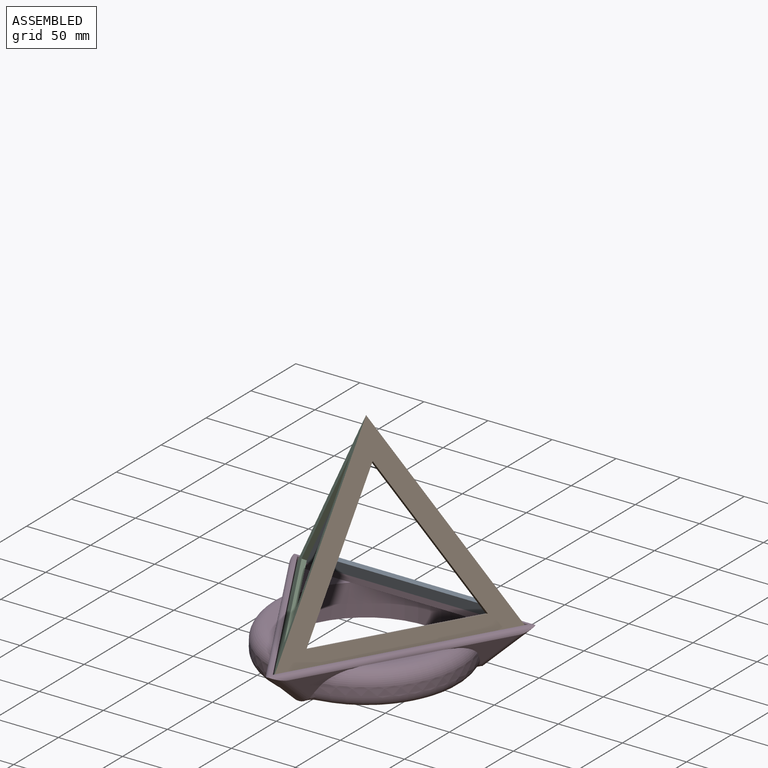
[diagram: assembled view]
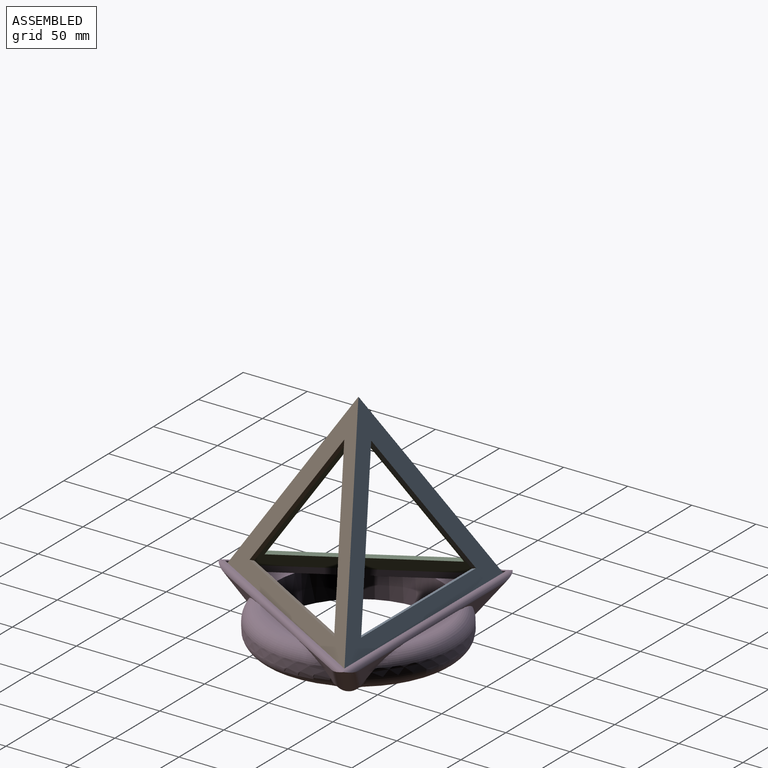
[diagram: assembled view, second angle]
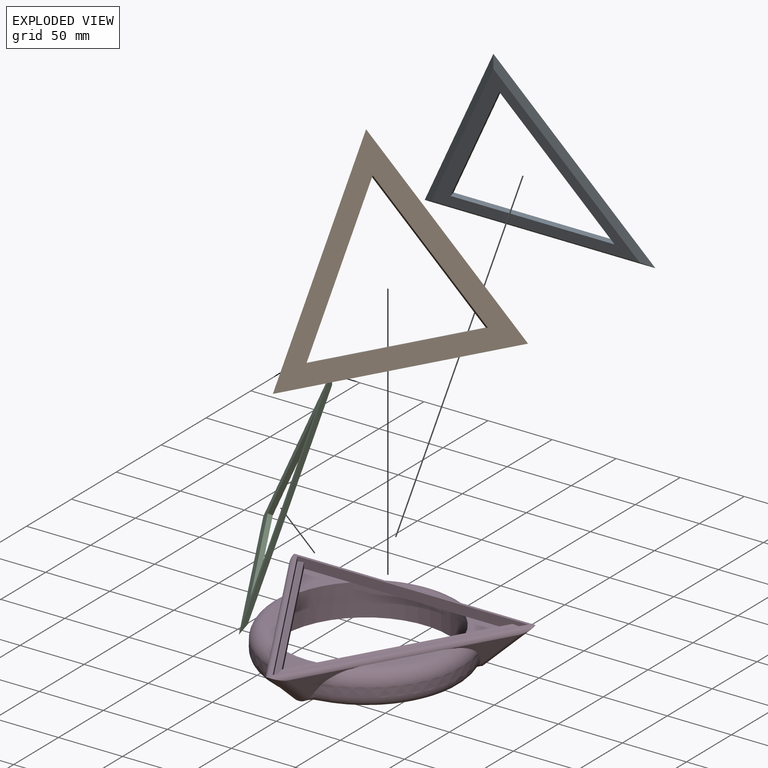
[diagram: exploded view]
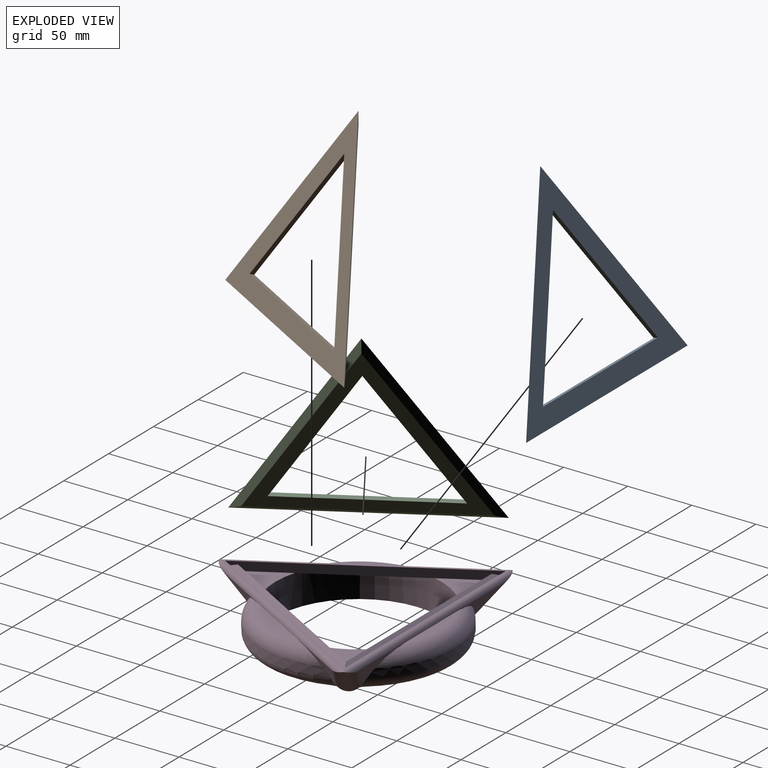
[diagram: exploded view, second angle]
ASSEMBLY  parts=4 mates=3
PART A: 8 faces, bbox 180x3.5x155.9 mm
  f0: plane 180x155.88mm, normal (0,1,0), area 6930.9mm2, adj f1,f2,f3,f4,f5,f6
  f1: plane 180x5mm, normal (0,-0.82,0.58), area 1049.2mm2, adj f0,f2,f3,f7
  f2: plane 155.88x90mm, normal (-0.5,-0.82,-0.29), area 1049.2mm2, adj f0,f1,f3,f7
  f3: plane 155.88x90mm, normal (0.5,-0.82,-0.29), area 1049.2mm2, adj f0,f1,f2,f7
  f4: plane 110.88x64.02mm, normal (-0.87,0,0.5), area 452.6mm2, adj f0,f5,f6,f7
  f5: plane 110.88x64.02mm, normal (0.87,0,0.5), area 452.6mm2, adj f0,f4,f6,f7
  f6: plane 128.04x3.54mm, normal (0,0,-1), area 452.6mm2, adj f0,f4,f5,f7
  f7: plane 162.68x140.88mm, normal (0,-1,0), area 4360.8mm2, adj f1,f2,f3,f4,f5,f6
PART B: same geometry as A
PART C: same geometry as A
PART D: 60 faces, bbox 193.6x192x33 mm
  f0: cylinder r=75mm len=116.17mm, axis (0,0,1), area 645.4mm2, adj f31,f43,f54
  f1: cylinder r=75mm len=100.61mm, axis (0,0,1), area 645.4mm2, adj f30,f42,f57
  f2: plane 5.8x4mm, normal (0,0,1), area 3.5mm2, adj f6,f32,f39,f44
  f3: plane 6.37x3.09mm, normal (0,0,1), area 3.5mm2, adj f6,f30,f36,f42
  f4: plane 5.8x4mm, normal (0,0,1), area 3.5mm2, adj f6,f30,f36,f42
  f5: plane 7.02x0.57mm, normal (0,0,1), area 3.5mm2, adj f6,f31,f33,f43
  f6: cylinder r=65mm len=130mm, axis (0,0,1), area 10014.2mm2, adj f2,f3,f4,f5,f7,f8,f9,f23
  f7: plane 89.88x9.43mm, normal (0,0,-1), area 738.9mm2, adj f6,f10,f31
  f8: plane 77.84x46.8mm, normal (0,0,-1), area 738.9mm2, adj f6,f12,f32
  f9: plane 77.84x46.8mm, normal (0,0,-1), area 738.9mm2, adj f6,f11,f30
  f10: plane 162.68x4.54mm, normal (0,-1,0), area 737.7mm2, adj f7,f11,f12,f13,f26,f27
  f11: plane 140.88x81.34mm, normal (-0.87,0.5,0), area 737.7mm2, adj f9,f10,f12,f15,f25,f27
  f12: plane 140.88x81.34mm, normal (0.87,0.5,0), area 737.7mm2, adj f8,f10,f11,f14,f25,f26
  f13: plane 180x5mm, normal (0,0.58,0.82), area 1049.2mm2, adj f10,f14,f15,f18
  f14: plane 155.88x90mm, normal (-0.5,-0.29,0.82), area 1049.2mm2, adj f12,f13,f15,f17
  f15: plane 155.88x90mm, normal (0.5,-0.29,0.82), area 1049.2mm2, adj f11,f13,f14,f16
  f16: plane 155.88x90mm, normal (-0.87,0.5,0), area 636.3mm2, adj f15,f17,f18,f19
  f17: plane 155.88x90mm, normal (0.87,0.5,0), area 636.3mm2, adj f14,f16,f18,f19
  f18: plane 180x3.54mm, normal (0,-1,0), area 636.3mm2, adj f13,f16,f17,f19
  f19: plane 183.46x158.88mm, normal (0,0,1), area 545.2mm2, adj f16,f17,f18,f20,f21,f22
  f20: cylinder r=4mm len=188.34mm, axis (1,0,0), area 1045.9mm2, adj f19,f21,f22,f31,f45,f47
  f21: cylinder r=4mm len=165.1mm, axis (-0.5,0.87,0), area 1045.9mm2, adj f19,f20,f22,f32,f46,f47
  f22: cylinder r=4mm len=165.1mm, axis (-0.5,-0.87,0), area 1045.9mm2, adj f19,f20,f21,f30,f45,f46
  f23: plane 6.37x3.09mm, normal (0,0,1), area 3.5mm2, adj f6,f32,f39,f44
  f24: plane 7.02x0.57mm, normal (0,0,1), area 3.5mm2, adj f6,f31,f33,f43
  f25: plane 36.4x31.52mm, normal (0,0,1), area 510.4mm2, adj f6,f11,f12
  f26: plane 36.4x31.52mm, normal (0,0,1), area 510.4mm2, adj f6,f10,f12
  f27: plane 36.4x31.52mm, normal (0,0,1), area 510.4mm2, adj f6,f10,f11
  f28: cylinder r=75mm len=100.61mm, axis (0,0,1), area 645.4mm2, adj f32,f44,f49
  f29: plane 139.44x131mm, normal (0,0,-1), area 336.7mm2, adj f6,f48,f49,f50,f51,f52,f53,f54
  f30: plane 141.71x82.14mm, normal (0.75,-0.43,-0.5), area 952.7mm2, adj f1,f3,f4,f9,f22,f42,f45,f46
  f31: plane 163.52x21.93mm, normal (0,0.87,-0.5), area 952.7mm2, adj f0,f5,f7,f20,f24,f43,f45,f47
  f32: plane 141.71x82.14mm, normal (-0.75,-0.43,-0.5), area 952.7mm2, adj f2,f8,f21,f23,f28,f44,f46,f47
  f33: plane 75.46x2.48mm, normal (0,-1,0), area 131.8mm2, adj f5,f6,f24,f34,f35,f43
  f34: plane 56.13x6.54mm, normal (0,0,1), area 247.3mm2, adj f33,f43
  f35: plane 62.62x8.04mm, normal (0,0,-1), area 340mm2, adj f6,f33
  f36: plane 65.41x37.97mm, normal (-0.87,0.5,0), area 131.8mm2, adj f3,f4,f6,f37,f38,f42
  f37: plane 48.61x28.07mm, normal (0,0,1), area 247.3mm2, adj f36,f42
  f38: plane 54.23x31.31mm, normal (0,0,-1), area 340mm2, adj f6,f36
  f39: plane 65.41x37.97mm, normal (0.87,0.5,0), area 131.8mm2, adj f2,f6,f23,f40,f41,f44
  f40: plane 48.61x28.07mm, normal (0,0,1), area 247.3mm2, adj f39,f44
  f41: plane 54.23x31.31mm, normal (0,0,-1), area 340mm2, adj f6,f39
  f42: torus R=63.5mm, axis (0,0,1), area 1744.1mm2, adj f1,f3,f4,f30,f36,f37
  f43: torus R=63.5mm, axis (0,0,1), area 1744.1mm2, adj f0,f5,f24,f31,f33,f34
  f44: torus R=63.5mm, axis (0,0,1), area 1744.1mm2, adj f2,f23,f28,f32,f39,f40
  f45: cylinder r=11.5mm len=36.14mm, axis (0.65,0.38,0.65), area 724.1mm2, adj f20,f22,f30,f31,f58
  f46: cylinder r=11.5mm len=34.24mm, axis (0,0.76,-0.65), area 724.1mm2, adj f21,f22,f30,f32,f53
  f47: cylinder r=11.5mm len=36.14mm, axis (0.65,-0.38,-0.65), area 724.1mm2, adj f20,f21,f31,f32,f50
  f48: bspline ~12.04x10.42mm, area 78.8mm2, adj f29,f32,f49,f50
  f49: torus R=65.5mm, axis (0,0,1), area 1891.6mm2, adj f28,f29,f48,f51
  f50: bspline ~15.44x9.24mm, area 45.9mm2, adj f29,f47,f48,f52
  f51: bspline ~10.52x9.85mm, area 78.8mm2, adj f29,f32,f49,f53
  f52: bspline ~11.68x11.47mm, area 78.8mm2, adj f29,f31,f50,f54
  f53: bspline ~17.82x5.31mm, area 45.9mm2, adj f29,f46,f51,f55
  f54: torus R=65.5mm, axis (0,0,1), area 1891.6mm2, adj f0,f29,f52,f56
  f55: bspline ~11.22x10.01mm, area 78.8mm2, adj f29,f30,f53,f57
  f56: bspline ~11.54x10.59mm, area 78.8mm2, adj f29,f31,f54,f58
  f57: torus R=65.5mm, axis (0,0,1), area 1891.6mm2, adj f1,f29,f55,f59
  f58: bspline ~15.42x9.49mm, area 45.9mm2, adj f29,f45,f56,f59
  f59: bspline ~12.84x10.54mm, area 78.8mm2, adj f29,f30,f57,f58
PLACE A rot(axis=(0,0.99,0.17),180deg) t=(0,38.11,40.17)mm
PLACE B rot(axis=(-0.38,-0.4,-0.84),138.6deg) t=(33,-8.64,54.9)mm
PLACE C rot(axis=(-0.38,0.4,0.84),138.6deg) t=(-33,-8.64,54.9)mm
PLACE D at identity
MATE fastened B.f2 <-> D.f15  axis (-0.5,0.29,-0.82) through (42.87,-24.75,2.74)mm
MATE fastened A.f1 <-> D.f13  axis (0,-0.58,-0.82) through (0,49.5,2.74)mm
MATE fastened C.f3 <-> D.f14  axis (0.5,0.29,-0.82) through (-42.87,-24.75,2.74)mm
